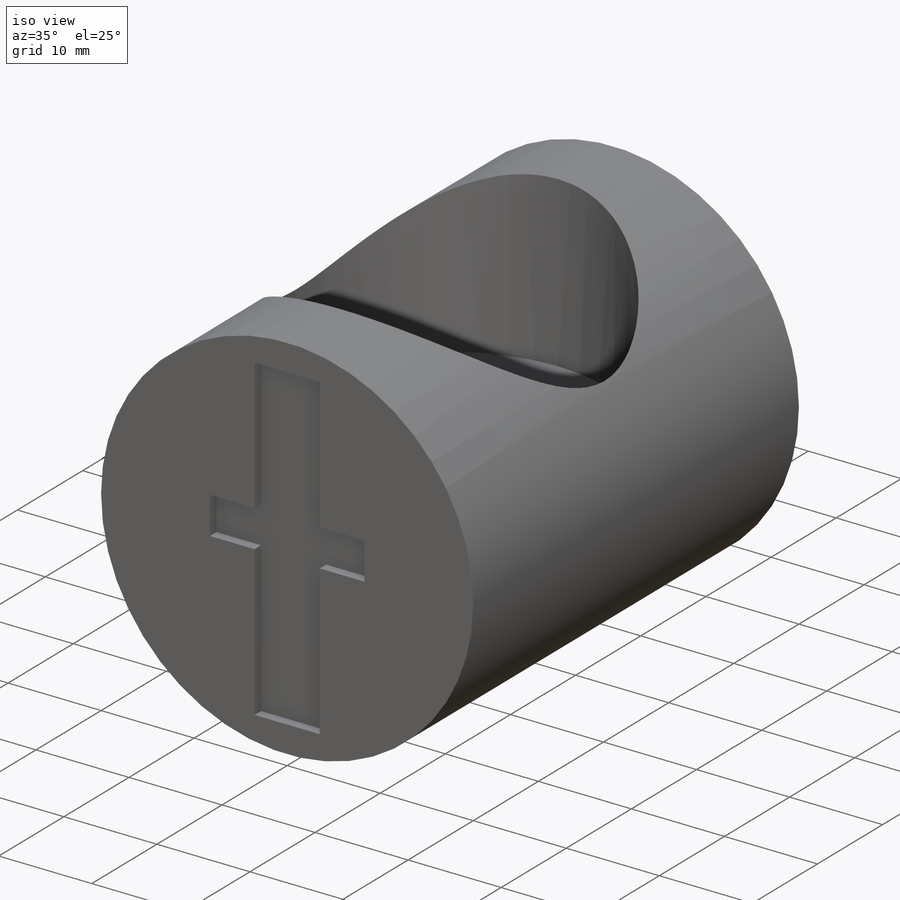
[diagram: iso view]
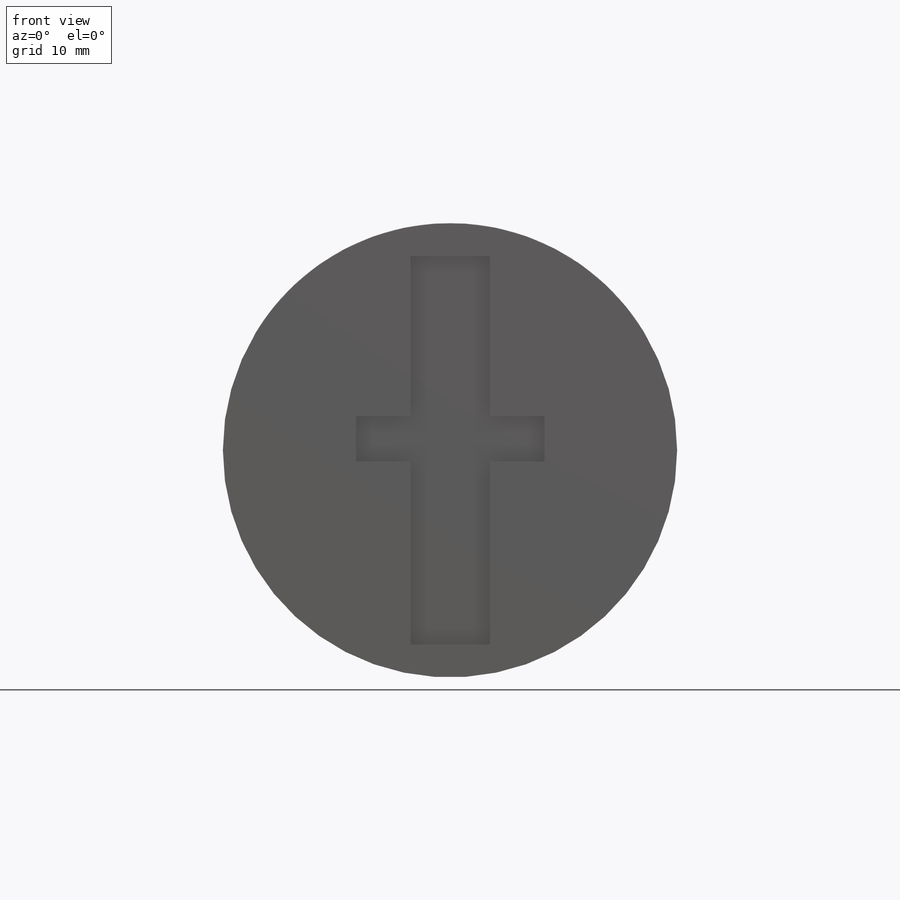
[diagram: front view]
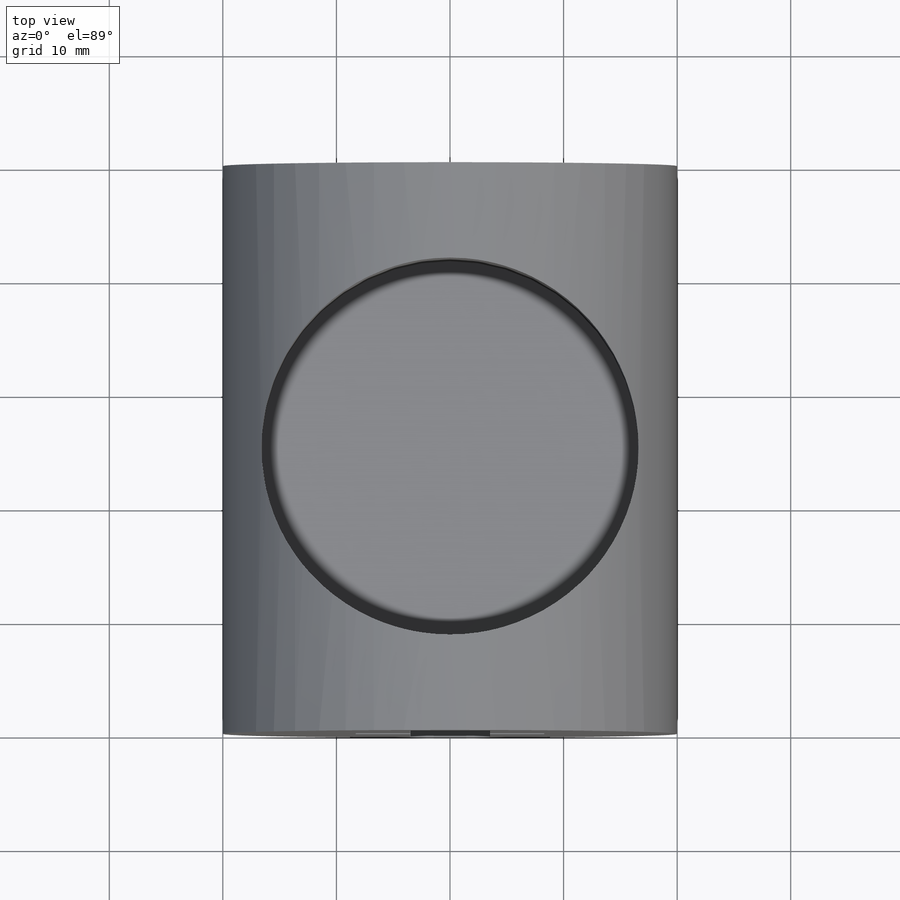
[diagram: top view]
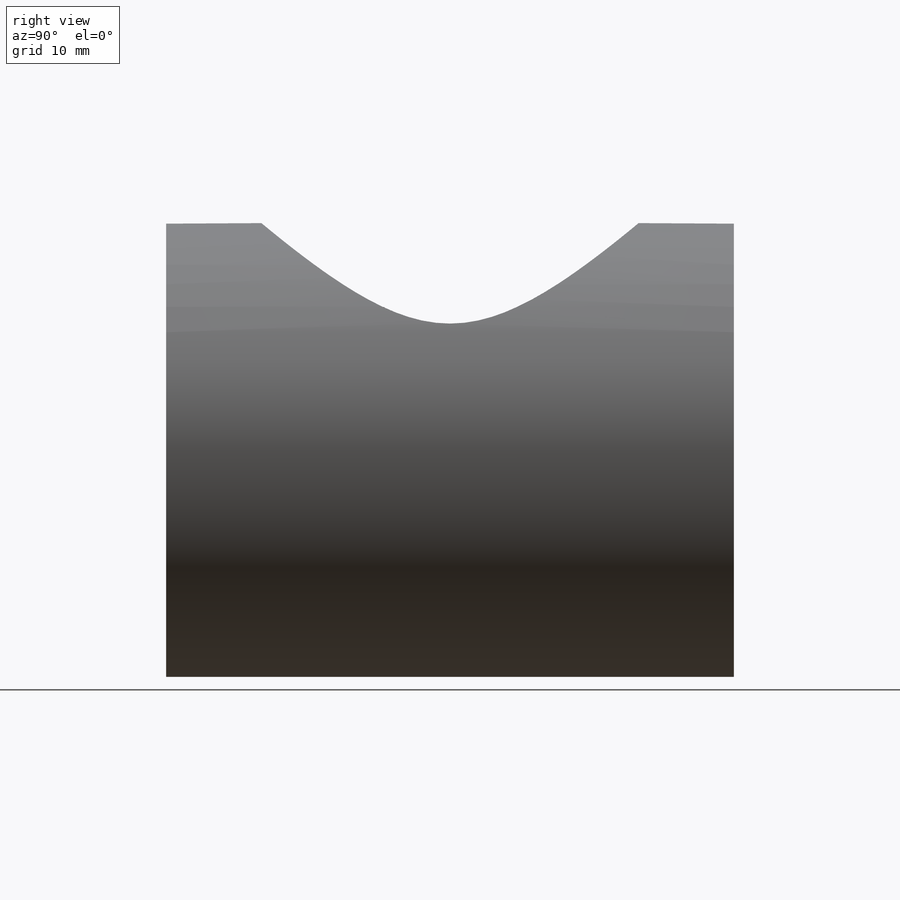
[diagram: right view]
SOLIDWORKS PART (.sldprt)
format: sldprt  version: not decoded by parser v0  size: 234,496 bytes
history: native  units: mm
features: sketch x7, plane x3, cut_extrude x3, material x1, extrude x1 (+10 scaffold rows collapsed)
feature tree (25):
  scaffold x10  (default folders/planes/origin — collapsed)
  material  "Material <sin especificar>"
  plane  "Alzado"
  plane  "Planta"
  plane  "Vista lateral"
  sketch  "Croquis1"  dims[D1=40.0mm]
  extrude  "Saliente-Extruir1"  Depth=50mm
  sketch  "Croquis2"
  sketch  "Croquis3D1"  dims[D1=~9.036616mm]
  cut_extrude  "Cortar-Extruir2"  Depth=12.2mm
  sketch  "Croquis4"  dims[c1.D6=~0.608571mm c1.D1=17.1mm c1.D2=34.2mm c1.D3=8.3mm c1.D4=8.3mm c1.D5=16.2mm c2.D6=3.8mm c2.D7=3.5mm c2.D8=3.5mm c3.D7=7.0mm c3.D6=4.0mm c3.D1=34.2mm c3.D3=16.6mm c3.D4=4.0mm c3.D5=7.0mm]
  cut_extrude  "Cortar-Extruir4"  Depth=1mm
  sketch  "Croquis7"  dims[D1=~8.475999mm D2=16.6mm]
  sketch  "Croquis9"  dims[D1=20.0mm D2=~12.179681mm]
  sketch  "Croquis10"
  cut_extrude  "Cortar-Extruir5"  Depth=6mm
decode coverage: 9 of 11 modeling features carry decoded parameters
note: ~ marks probable driven/reference dimensions
note: suppression state not decoded; provenance and decode notes live in map.json
